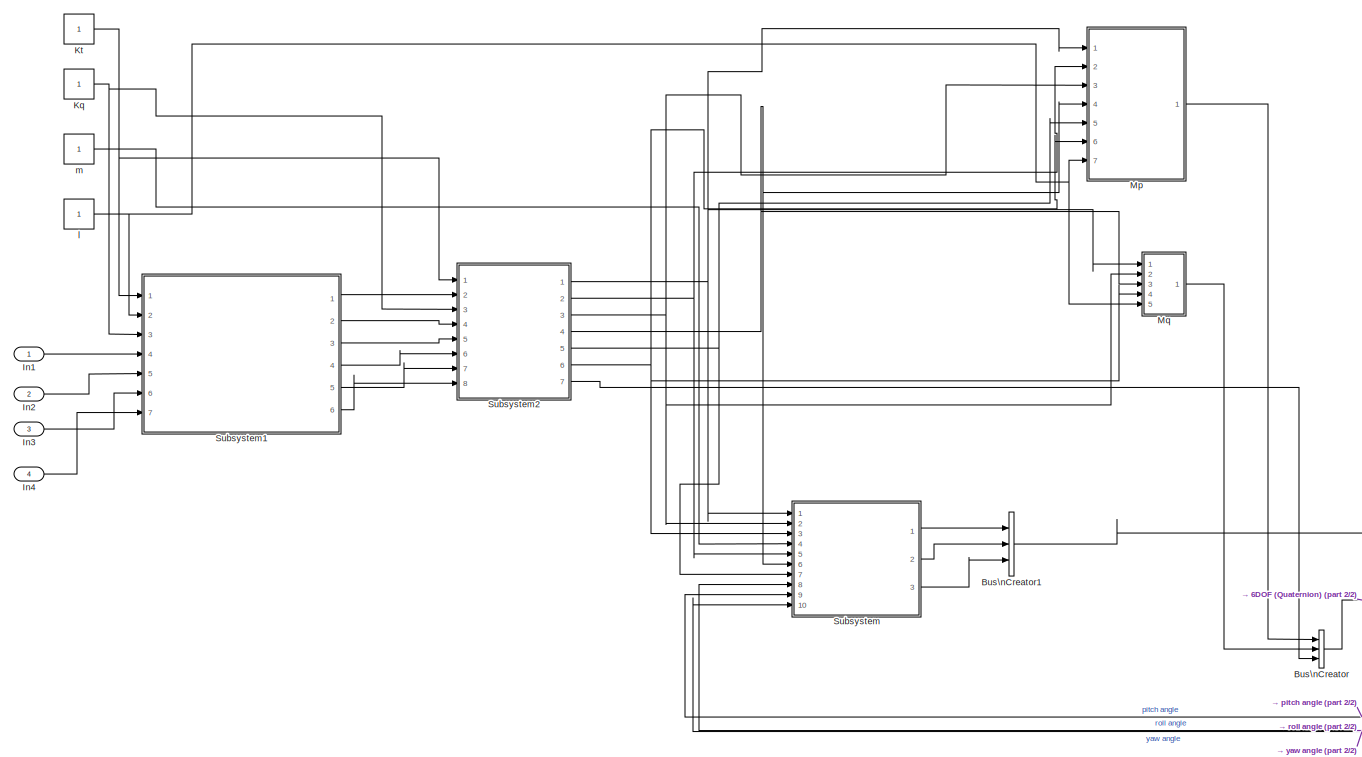
[diagram: root canvas - part 1/2, most of the canvas]
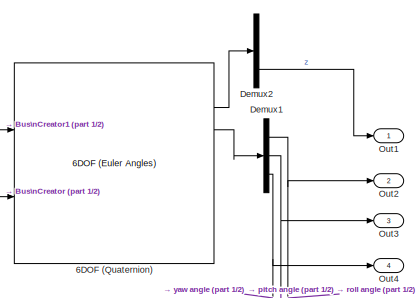
[diagram: root canvas - part 2/2, bottom right region]
MODEL hexarotor_dynamic_model
KIND model
BLOCK [Reference] 6DOF (Quaternion)  REF=aerolib6dof2/6DOF (Euler Angles)
  Ports = [2, 8]
  SID = 3
  SourceBlock = aerolib6dof2/6DOF (Euler Angles)
  SourceType = 6DOF EoM (Body Axis)
  Vm_0 = [0 0 0]
  eul_0 = [0 0 0]
  inertia = eye(3)
  inertia_e = eye(3)
  inertia_f = 2*eye(3)
  k_quat = 1.0
  mass_0 = 1.0
  mass_e = 0.5
  mass_f = 2.0
  mtype = Fixed
  pm_0 = [0 0 0]
  rep = Quaternion
  units = Metric (MKS)
  vre_flag = on
  xme_0 = [0 0 0]
BLOCK [BusCreator] Bus\nCreator
  DisplayOption = bar
  Inputs = 3
  Ports = [3, 1]
  SID = 92
BLOCK [BusCreator] Bus\nCreator1
  DisplayOption = bar
  Inputs = 3
  Ports = [3, 1]
  SID = 150
BLOCK [Demux] Demux1
  DisplayOption = bar
  Outputs = 3
  Ports = [1, 3]
  SID = 24
BLOCK [Demux] Demux2
  DisplayOption = bar
  Outputs = 3
  Ports = [1, 3]
  SID = 208
BLOCK [Inport] In1
  IconDisplay = Port number
  SID = 241
BLOCK [Inport] In2
  IconDisplay = Port number
  Port = 2
  SID = 242
BLOCK [Inport] In3
  IconDisplay = Port number
  Port = 3
  SID = 243
BLOCK [Inport] In4
  IconDisplay = Port number
  Port = 4
  SID = 244
BLOCK [Constant] Kq
  SID = 19
BLOCK [Constant] Kt
  SID = 18
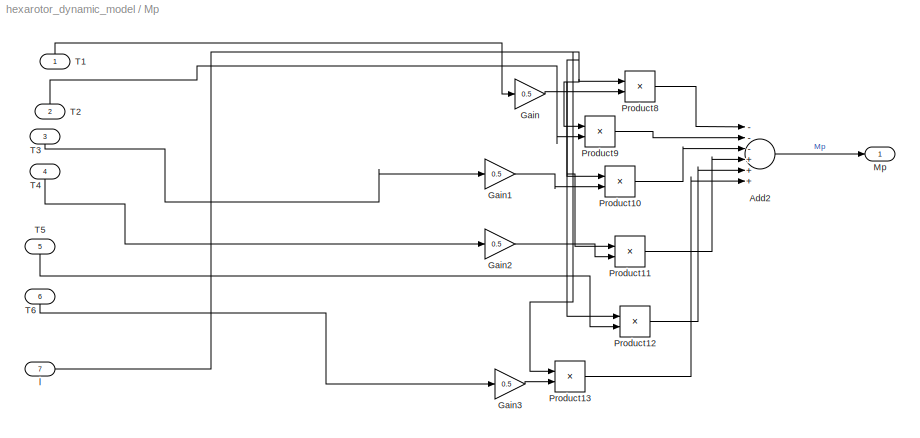
BLOCK [SubSystem] Mp
  Ports = [7, 1]
  RequestExecContextInheritance = off
  SID = 51
BLOCK [Sum] Mp/Add2
  InputSameDT = off
  Inputs = ---+++
  OutDataTypeStr = Inherit: Inherit via internal rule
  Ports = [6, 1]
  SID = 40
  SaturateOnIntegerOverflow = off
BLOCK [Gain] Mp/Gain
  Gain = 0.5
  OutDataTypeStr = Inherit: Inherit via internal rule
  ParamDataTypeStr = Inherit: Inherit via internal rule
  SID = 41
  SaturateOnIntegerOverflow = off
BLOCK [Gain] Mp/Gain1
  Gain = 0.5
  OutDataTypeStr = Inherit: Inherit via internal rule
  ParamDataTypeStr = Inherit: Inherit via internal rule
  SID = 44
  SaturateOnIntegerOverflow = off
BLOCK [Gain] Mp/Gain2
  Gain = 0.5
  OutDataTypeStr = Inherit: Inherit via internal rule
  ParamDataTypeStr = Inherit: Inherit via internal rule
  SID = 46
  SaturateOnIntegerOverflow = off
BLOCK [Gain] Mp/Gain3
  Gain = 0.5
  OutDataTypeStr = Inherit: Inherit via internal rule
  ParamDataTypeStr = Inherit: Inherit via internal rule
  SID = 50
  SaturateOnIntegerOverflow = off
BLOCK [Outport] Mp/Mp
  IconDisplay = Port number
  SID = 59
BLOCK [Product] Mp/Product10
  InputSameDT = off
  OutDataTypeStr = Inherit: Inherit via internal rule
  Ports = [2, 1]
  RndMeth = Floor
  SID = 45
  SaturateOnIntegerOverflow = off
BLOCK [Product] Mp/Product11
  InputSameDT = off
  OutDataTypeStr = Inherit: Inherit via internal rule
  Ports = [2, 1]
  RndMeth = Floor
  SID = 47
  SaturateOnIntegerOverflow = off
BLOCK [Product] Mp/Product12
  InputSameDT = off
  OutDataTypeStr = Inherit: Inherit via internal rule
  Ports = [2, 1]
  RndMeth = Floor
  SID = 48
  SaturateOnIntegerOverflow = off
BLOCK [Product] Mp/Product13
  InputSameDT = off
  OutDataTypeStr = Inherit: Inherit via internal rule
  Ports = [2, 1]
  RndMeth = Floor
  SID = 49
  SaturateOnIntegerOverflow = off
BLOCK [Product] Mp/Product8
  InputSameDT = off
  OutDataTypeStr = Inherit: Inherit via internal rule
  Ports = [2, 1]
  RndMeth = Floor
  SID = 42
  SaturateOnIntegerOverflow = off
BLOCK [Product] Mp/Product9
  InputSameDT = off
  OutDataTypeStr = Inherit: Inherit via internal rule
  Ports = [2, 1]
  RndMeth = Floor
  SID = 43
  SaturateOnIntegerOverflow = off
BLOCK [Inport] Mp/T1
  IconDisplay = Port number
  SID = 52
BLOCK [Inport] Mp/T2
  IconDisplay = Port number
  Port = 2
  SID = 53
BLOCK [Inport] Mp/T3
  IconDisplay = Port number
  Port = 3
  SID = 54
BLOCK [Inport] Mp/T4
  IconDisplay = Port number
  Port = 4
  SID = 55
BLOCK [Inport] Mp/T5
  IconDisplay = Port number
  Port = 5
  SID = 56
BLOCK [Inport] Mp/T6
  IconDisplay = Port number
  Port = 6
  SID = 57
BLOCK [Inport] Mp/l
  IconDisplay = Port number
  Port = 7
  SID = 58
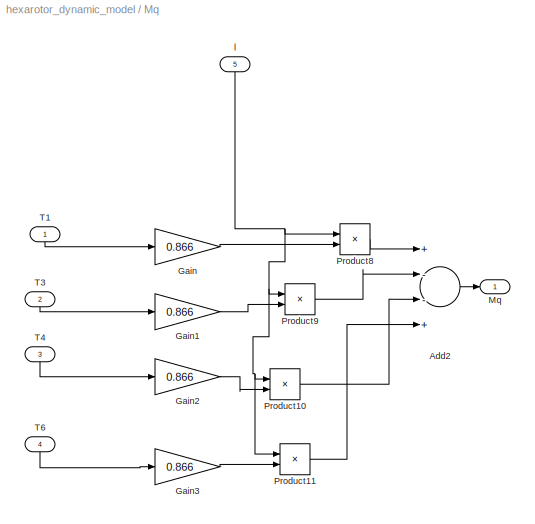
BLOCK [SubSystem] Mq
  Ports = [5, 1]
  RequestExecContextInheritance = off
  SID = 69
BLOCK [Sum] Mq/Add2
  InputSameDT = off
  Inputs = +--+
  OutDataTypeStr = Inherit: Inherit via internal rule
  Ports = [4, 1]
  SID = 60
  SaturateOnIntegerOverflow = off
BLOCK [Gain] Mq/Gain
  Gain = 0.866
  OutDataTypeStr = Inherit: Inherit via internal rule
  ParamDataTypeStr = Inherit: Inherit via internal rule
  SID = 62
  SaturateOnIntegerOverflow = off
BLOCK [Gain] Mq/Gain1
  Gain = 0.866
  OutDataTypeStr = Inherit: Inherit via internal rule
  ParamDataTypeStr = Inherit: Inherit via internal rule
  SID = 63
  SaturateOnIntegerOverflow = off
BLOCK [Gain] Mq/Gain2
  Gain = 0.866
  OutDataTypeStr = Inherit: Inherit via internal rule
  ParamDataTypeStr = Inherit: Inherit via internal rule
  SID = 64
  SaturateOnIntegerOverflow = off
BLOCK [Gain] Mq/Gain3
  Gain = 0.866
  OutDataTypeStr = Inherit: Inherit via internal rule
  ParamDataTypeStr = Inherit: Inherit via internal rule
  SID = 65
  SaturateOnIntegerOverflow = off
BLOCK [Outport] Mq/Mq
  IconDisplay = Port number
  SID = 75
BLOCK [Product] Mq/Product10
  InputSameDT = off
  OutDataTypeStr = Inherit: Inherit via internal rule
  Ports = [2, 1]
  RndMeth = Floor
  SID = 67
  SaturateOnIntegerOverflow = off
BLOCK [Product] Mq/Product11
  InputSameDT = off
  OutDataTypeStr = Inherit: Inherit via internal rule
  Ports = [2, 1]
  RndMeth = Floor
  SID = 68
  SaturateOnIntegerOverflow = off
BLOCK [Product] Mq/Product8
  InputSameDT = off
  OutDataTypeStr = Inherit: Inherit via internal rule
  Ports = [2, 1]
  RndMeth = Floor
  SID = 61
  SaturateOnIntegerOverflow = off
BLOCK [Product] Mq/Product9
  InputSameDT = off
  OutDataTypeStr = Inherit: Inherit via internal rule
  Ports = [2, 1]
  RndMeth = Floor
  SID = 66
  SaturateOnIntegerOverflow = off
BLOCK [Inport] Mq/T1
  IconDisplay = Port number
  SID = 70
BLOCK [Inport] Mq/T3
  IconDisplay = Port number
  Port = 2
  SID = 71
BLOCK [Inport] Mq/T4
  IconDisplay = Port number
  Port = 3
  SID = 72
BLOCK [Inport] Mq/T6
  IconDisplay = Port number
  Port = 4
  SID = 73
BLOCK [Inport] Mq/l
  IconDisplay = Port number
  Port = 5
  SID = 74
BLOCK [Outport] Out1
  IconDisplay = Port number
  SID = 245
BLOCK [Outport] Out2
  IconDisplay = Port number
  Port = 2
  SID = 246
BLOCK [Outport] Out3
  IconDisplay = Port number
  Port = 3
  SID = 247
BLOCK [Outport] Out4
  IconDisplay = Port number
  Port = 4
  SID = 248
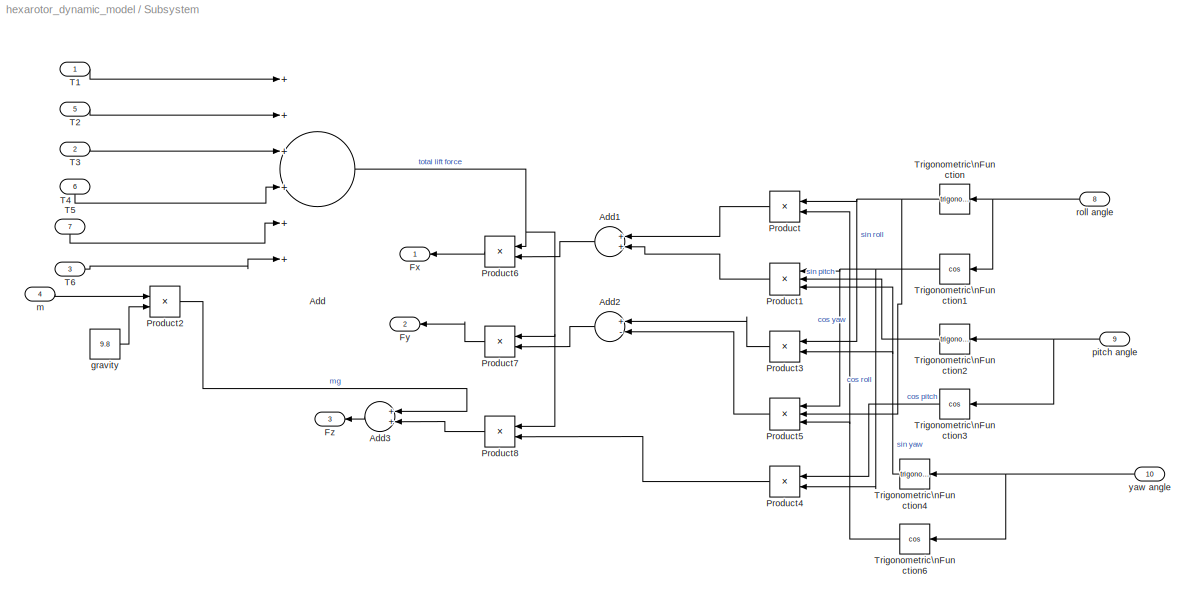
BLOCK [SubSystem] Subsystem
  Ports = [10, 3]
  RequestExecContextInheritance = off
  SID = 135
BLOCK [Sum] Subsystem/Add
  InputSameDT = off
  Inputs = ++++++
  OutDataTypeStr = Inherit: Inherit via internal rule
  Ports = [6, 1]
  SID = 20
  SaturateOnIntegerOverflow = off
BLOCK [Sum] Subsystem/Add1
  InputSameDT = off
  OutDataTypeStr = Inherit: Inherit via internal rule
  Ports = [2, 1]
  SID = 126
  SaturateOnIntegerOverflow = off
BLOCK [Sum] Subsystem/Add2
  InputSameDT = off
  Inputs = +-
  OutDataTypeStr = Inherit: Inherit via internal rule
  Ports = [2, 1]
  SID = 127
  SaturateOnIntegerOverflow = off
BLOCK [Sum] Subsystem/Add3
  InputSameDT = off
  OutDataTypeStr = Inherit: Inherit via internal rule
  Ports = [2, 1]
  SID = 134
  SaturateOnIntegerOverflow = off
BLOCK [Outport] Subsystem/Fx
  IconDisplay = Port number
  SID = 146
BLOCK [Outport] Subsystem/Fy
  IconDisplay = Port number
  Port = 2
  SID = 147
BLOCK [Outport] Subsystem/Fz
  IconDisplay = Port number
  Port = 3
  SID = 149
BLOCK [Product] Subsystem/Product
  InputSameDT = off
  OutDataTypeStr = Inherit: Inherit via internal rule
  Ports = [2, 1]
  RndMeth = Floor
  SID = 119
  SaturateOnIntegerOverflow = off
BLOCK [Product] Subsystem/Product1
  InputSameDT = off
  Inputs = 3
  OutDataTypeStr = Inherit: Inherit via internal rule
  Ports = [3, 1]
  RndMeth = Floor
  SID = 120
  SaturateOnIntegerOverflow = off
BLOCK [Product] Subsystem/Product2
  InputSameDT = off
  OutDataTypeStr = Inherit: Inherit via internal rule
  Ports = [2, 1]
  RndMeth = Floor
  SID = 32
  SaturateOnIntegerOverflow = off
BLOCK [Product] Subsystem/Product3
  InputSameDT = off
  OutDataTypeStr = Inherit: Inherit via internal rule
  Ports = [2, 1]
  RndMeth = Floor
  SID = 121
  SaturateOnIntegerOverflow = off
BLOCK [Product] Subsystem/Product4
  InputSameDT = off
  OutDataTypeStr = Inherit: Inherit via internal rule
  Ports = [2, 1]
  RndMeth = Floor
  SID = 122
  SaturateOnIntegerOverflow = off
BLOCK [Product] Subsystem/Product5
  InputSameDT = off
  Inputs = 3
  OutDataTypeStr = Inherit: Inherit via internal rule
  Ports = [3, 1]
  RndMeth = Floor
  SID = 123
  SaturateOnIntegerOverflow = off
BLOCK [Product] Subsystem/Product6
  InputSameDT = off
  OutDataTypeStr = Inherit: Inherit via internal rule
  Ports = [2, 1]
  RndMeth = Floor
  SID = 125
  SaturateOnIntegerOverflow = off
BLOCK [Product] Subsystem/Product7
  InputSameDT = off
  OutDataTypeStr = Inherit: Inherit via internal rule
  Ports = [2, 1]
  RndMeth = Floor
  SID = 129
  SaturateOnIntegerOverflow = off
BLOCK [Product] Subsystem/Product8
  InputSameDT = off
  OutDataTypeStr = Inherit: Inherit via internal rule
  Ports = [2, 1]
  RndMeth = Floor
  SID = 130
  SaturateOnIntegerOverflow = off
BLOCK [Inport] Subsystem/T1
  IconDisplay = Port number
  SID = 136
BLOCK [Inport] Subsystem/T2
  IconDisplay = Port number
  Port = 5
  SID = 140
BLOCK [Inport] Subsystem/T3
  IconDisplay = Port number
  Port = 2
  SID = 137
BLOCK [Inport] Subsystem/T4
  IconDisplay = Port number
  Port = 6
  SID = 141
BLOCK [Inport] Subsystem/T5
  IconDisplay = Port number
  Port = 7
  SID = 142
BLOCK [Inport] Subsystem/T6
  IconDisplay = Port number
  Port = 3
  SID = 138
BLOCK [Trigonometry] Subsystem/Trigonometric\nFunction
  Ports = [1, 1]
  SID = 112
BLOCK [Trigonometry] Subsystem/Trigonometric\nFunction1
  Operator = cos
  Ports = [1, 1]
  SID = 113
BLOCK [Trigonometry] Subsystem/Trigonometric\nFunction2
  Ports = [1, 1]
  SID = 114
BLOCK [Trigonometry] Subsystem/Trigonometric\nFunction3
  Operator = cos
  Ports = [1, 1]
  SID = 115
BLOCK [Trigonometry] Subsystem/Trigonometric\nFunction4
  Ports = [1, 1]
  SID = 116
BLOCK [Trigonometry] Subsystem/Trigonometric\nFunction6
  Operator = cos
  Ports = [1, 1]
  SID = 118
BLOCK [Constant] Subsystem/gravity
  SID = 33
  Value = 9.8
BLOCK [Inport] Subsystem/m
  IconDisplay = Port number
  Port = 4
  SID = 139
BLOCK [Inport] Subsystem/pitch angle
  IconDisplay = Port number
  Port = 9
  SID = 144
BLOCK [Inport] Subsystem/roll angle
  IconDisplay = Port number
  Port = 8
  SID = 143
BLOCK [Inport] Subsystem/yaw angle
  IconDisplay = Port number
  Port = 10
  SID = 145
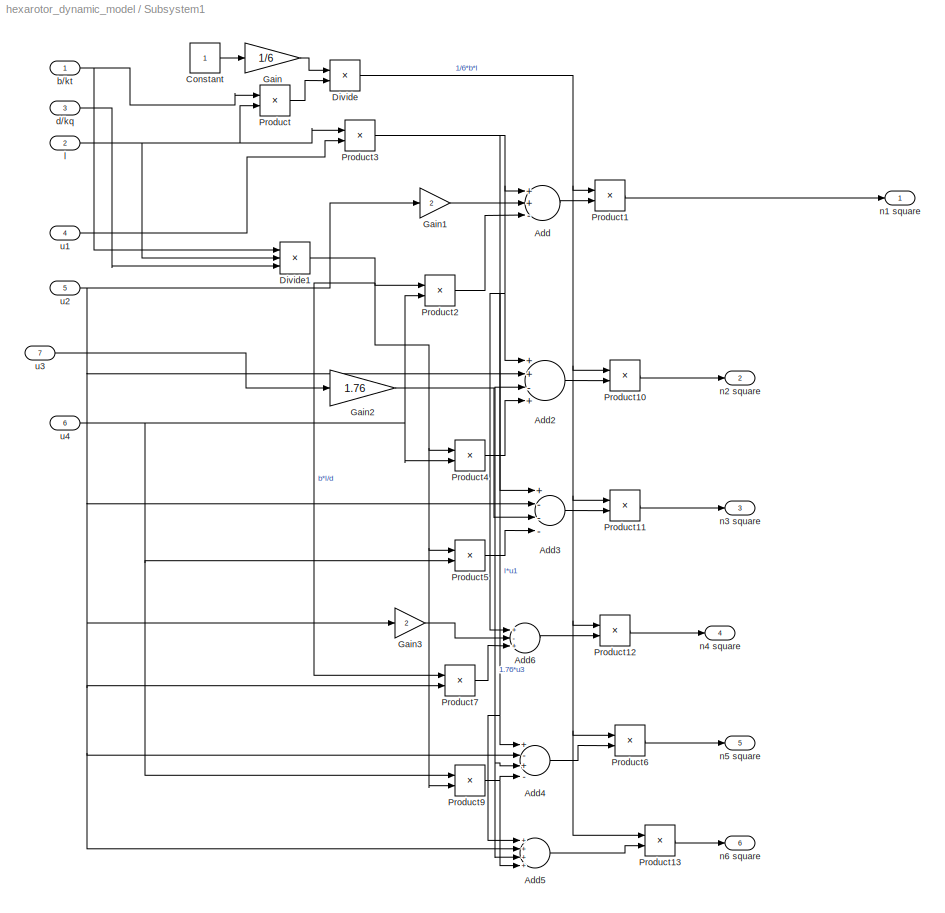
BLOCK [SubSystem] Subsystem1
  Ports = [7, 6]
  RequestExecContextInheritance = off
  SID = 151
BLOCK [Sum] Subsystem1/Add
  InputSameDT = off
  Inputs = ++-
  OutDataTypeStr = Inherit: Inherit via internal rule
  Ports = [3, 1]
  SID = 159
  SaturateOnIntegerOverflow = off
BLOCK [Sum] Subsystem1/Add2
  InputSameDT = off
  Inputs = ++-+
  OutDataTypeStr = Inherit: Inherit via internal rule
  Ports = [4, 1]
  SID = 160
  SaturateOnIntegerOverflow = off
BLOCK [Sum] Subsystem1/Add3
  InputSameDT = off
  Inputs = +---
  OutDataTypeStr = Inherit: Inherit via internal rule
  Ports = [4, 1]
  SID = 161
  SaturateOnIntegerOverflow = off
BLOCK [Sum] Subsystem1/Add4
  InputSameDT = off
  Inputs = +-+-
  OutDataTypeStr = Inherit: Inherit via internal rule
  Ports = [4, 1]
  SID = 162
  SaturateOnIntegerOverflow = off
BLOCK [Sum] Subsystem1/Add5
  InputSameDT = off
  Inputs = ++++
  OutDataTypeStr = Inherit: Inherit via internal rule
  Ports = [4, 1]
  SID = 163
  SaturateOnIntegerOverflow = off
BLOCK [Sum] Subsystem1/Add6
  InputSameDT = off
  Inputs = +-+
  OutDataTypeStr = Inherit: Inherit via internal rule
  Ports = [3, 1]
  SID = 164
  SaturateOnIntegerOverflow = off
BLOCK [Constant] Subsystem1/Constant
  SID = 165
BLOCK [Product] Subsystem1/Divide
  InputSameDT = off
  Inputs = */
  OutDataTypeStr = Inherit: Inherit via internal rule
  Ports = [2, 1]
  RndMeth = Floor
  SID = 166
  SaturateOnIntegerOverflow = off
BLOCK [Product] Subsystem1/Divide1
  InputSameDT = off
  Inputs = **/
  OutDataTypeStr = Inherit: Inherit via internal rule
  Ports = [3, 1]
  RndMeth = Floor
  SID = 167
  SaturateOnIntegerOverflow = off
BLOCK [Gain] Subsystem1/Gain
  Gain = 1/6
  OutDataTypeStr = Inherit: Inherit via internal rule
  ParamDataTypeStr = Inherit: Inherit via internal rule
  SID = 168
  SaturateOnIntegerOverflow = off
BLOCK [Gain] Subsystem1/Gain1
  Gain = 2
  OutDataTypeStr = Inherit: Inherit via internal rule
  ParamDataTypeStr = Inherit: Inherit via internal rule
  SID = 169
  SaturateOnIntegerOverflow = off
BLOCK [Gain] Subsystem1/Gain2
  Gain = 1.76
  OutDataTypeStr = Inherit: Inherit via internal rule
  ParamDataTypeStr = Inherit: Inherit via internal rule
  SID = 170
  SaturateOnIntegerOverflow = off
BLOCK [Gain] Subsystem1/Gain3
  Gain = 2
  OutDataTypeStr = Inherit: Inherit via internal rule
  ParamDataTypeStr = Inherit: Inherit via internal rule
  SID = 171
  SaturateOnIntegerOverflow = off
BLOCK [Product] Subsystem1/Product
  InputSameDT = off
  OutDataTypeStr = Inherit: Inherit via internal rule
  Ports = [2, 1]
  RndMeth = Floor
  SID = 172
  SaturateOnIntegerOverflow = off
BLOCK [Product] Subsystem1/Product1
  InputSameDT = off
  OutDataTypeStr = Inherit: Inherit via internal rule
  Ports = [2, 1]
  RndMeth = Floor
  SID = 173
  SaturateOnIntegerOverflow = off
BLOCK [Product] Subsystem1/Product10
  InputSameDT = off
  OutDataTypeStr = Inherit: Inherit via internal rule
  Ports = [2, 1]
  RndMeth = Floor
  SID = 174
  SaturateOnIntegerOverflow = off
BLOCK [Product] Subsystem1/Product11
  InputSameDT = off
  OutDataTypeStr = Inherit: Inherit via internal rule
  Ports = [2, 1]
  RndMeth = Floor
  SID = 175
  SaturateOnIntegerOverflow = off
BLOCK [Product] Subsystem1/Product12
  InputSameDT = off
  OutDataTypeStr = Inherit: Inherit via internal rule
  Ports = [2, 1]
  RndMeth = Floor
  SID = 176
  SaturateOnIntegerOverflow = off
BLOCK [Product] Subsystem1/Product13
  InputSameDT = off
  OutDataTypeStr = Inherit: Inherit via internal rule
  Ports = [2, 1]
  RndMeth = Floor
  SID = 177
  SaturateOnIntegerOverflow = off
BLOCK [Product] Subsystem1/Product2
  InputSameDT = off
  OutDataTypeStr = Inherit: Inherit via internal rule
  Ports = [2, 1]
  RndMeth = Floor
  SID = 178
  SaturateOnIntegerOverflow = off
BLOCK [Product] Subsystem1/Product3
  InputSameDT = off
  OutDataTypeStr = Inherit: Inherit via internal rule
  Ports = [2, 1]
  RndMeth = Floor
  SID = 179
  SaturateOnIntegerOverflow = off
BLOCK [Product] Subsystem1/Product4
  InputSameDT = off
  OutDataTypeStr = Inherit: Inherit via internal rule
  Ports = [2, 1]
  RndMeth = Floor
  SID = 180
  SaturateOnIntegerOverflow = off
BLOCK [Product] Subsystem1/Product5
  InputSameDT = off
  OutDataTypeStr = Inherit: Inherit via internal rule
  Ports = [2, 1]
  RndMeth = Floor
  SID = 181
  SaturateOnIntegerOverflow = off
BLOCK [Product] Subsystem1/Product6
  InputSameDT = off
  OutDataTypeStr = Inherit: Inherit via internal rule
  Ports = [2, 1]
  RndMeth = Floor
  SID = 182
  SaturateOnIntegerOverflow = off
BLOCK [Product] Subsystem1/Product7
  InputSameDT = off
  OutDataTypeStr = Inherit: Inherit via internal rule
  Ports = [2, 1]
  RndMeth = Floor
  SID = 183
  SaturateOnIntegerOverflow = off
BLOCK [Product] Subsystem1/Product9
  InputSameDT = off
  OutDataTypeStr = Inherit: Inherit via internal rule
  Ports = [2, 1]
  RndMeth = Floor
  SID = 184
  SaturateOnIntegerOverflow = off
BLOCK [Inport] Subsystem1/b//kt
  IconDisplay = Port number
  SID = 152
BLOCK [Inport] Subsystem1/d//kq
  IconDisplay = Port number
  Port = 3
  SID = 154
BLOCK [Inport] Subsystem1/l
  IconDisplay = Port number
  Port = 2
  SID = 153
BLOCK [Outport] Subsystem1/n1 square
  IconDisplay = Port number
  SID = 185
BLOCK [Outport] Subsystem1/n2 square
  IconDisplay = Port number
  Port = 2
  SID = 186
BLOCK [Outport] Subsystem1/n3 square
  IconDisplay = Port number
  Port = 3
  SID = 187
BLOCK [Outport] Subsystem1/n4 square
  IconDisplay = Port number
  Port = 4
  SID = 188
BLOCK [Outport] Subsystem1/n5 square
  IconDisplay = Port number
  Port = 5
  SID = 189
BLOCK [Outport] Subsystem1/n6 square
  IconDisplay = Port number
  Port = 6
  SID = 190
BLOCK [Inport] Subsystem1/u1
  IconDisplay = Port number
  Port = 4
  SID = 155
BLOCK [Inport] Subsystem1/u2
  IconDisplay = Port number
  Port = 5
  SID = 156
BLOCK [Inport] Subsystem1/u3
  IconDisplay = Port number
  Port = 7
  SID = 158
BLOCK [Inport] Subsystem1/u4
  IconDisplay = Port number
  Port = 6
  SID = 157
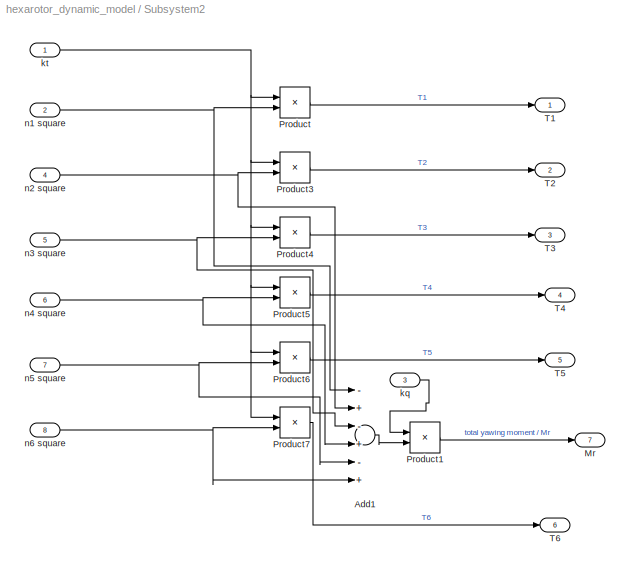
BLOCK [SubSystem] Subsystem2
  Ports = [8, 7]
  RequestExecContextInheritance = off
  SID = 76
BLOCK [Sum] Subsystem2/Add1
  InputSameDT = off
  Inputs = -+-+-+
  OutDataTypeStr = Inherit: Inherit via internal rule
  Ports = [6, 1]
  SID = 21
  SaturateOnIntegerOverflow = off
BLOCK [Outport] Subsystem2/Mr
  IconDisplay = Port number
  Port = 7
  SID = 91
BLOCK [Product] Subsystem2/Product
  InputSameDT = off
  OutDataTypeStr = Inherit: Inherit via internal rule
  Ports = [2, 1]
  RndMeth = Floor
  SID = 22
  SaturateOnIntegerOverflow = off
BLOCK [Product] Subsystem2/Product1
  InputSameDT = off
  OutDataTypeStr = Inherit: Inherit via internal rule
  Ports = [2, 1]
  RndMeth = Floor
  SID = 23
  SaturateOnIntegerOverflow = off
BLOCK [Product] Subsystem2/Product3
  InputSameDT = off
  OutDataTypeStr = Inherit: Inherit via internal rule
  Ports = [2, 1]
  RndMeth = Floor
  SID = 34
  SaturateOnIntegerOverflow = off
BLOCK [Product] Subsystem2/Product4
  InputSameDT = off
  OutDataTypeStr = Inherit: Inherit via internal rule
  Ports = [2, 1]
  RndMeth = Floor
  SID = 35
  SaturateOnIntegerOverflow = off
BLOCK [Product] Subsystem2/Product5
  InputSameDT = off
  OutDataTypeStr = Inherit: Inherit via internal rule
  Ports = [2, 1]
  RndMeth = Floor
  SID = 36
  SaturateOnIntegerOverflow = off
BLOCK [Product] Subsystem2/Product6
  InputSameDT = off
  OutDataTypeStr = Inherit: Inherit via internal rule
  Ports = [2, 1]
  RndMeth = Floor
  SID = 37
  SaturateOnIntegerOverflow = off
BLOCK [Product] Subsystem2/Product7
  InputSameDT = off
  OutDataTypeStr = Inherit: Inherit via internal rule
  Ports = [2, 1]
  RndMeth = Floor
  SID = 38
  SaturateOnIntegerOverflow = off
BLOCK [Outport] Subsystem2/T1
  IconDisplay = Port number
  SID = 85
BLOCK [Outport] Subsystem2/T2
  IconDisplay = Port number
  Port = 2
  SID = 86
BLOCK [Outport] Subsystem2/T3
  IconDisplay = Port number
  Port = 3
  SID = 87
BLOCK [Outport] Subsystem2/T4
  IconDisplay = Port number
  Port = 4
  SID = 88
BLOCK [Outport] Subsystem2/T5
  IconDisplay = Port number
  Port = 5
  SID = 89
BLOCK [Outport] Subsystem2/T6
  IconDisplay = Port number
  Port = 6
  SID = 90
BLOCK [Inport] Subsystem2/kq
  IconDisplay = Port number
  Port = 3
  SID = 79
BLOCK [Inport] Subsystem2/kt
  IconDisplay = Port number
  SID = 77
BLOCK [Inport] Subsystem2/n1 square
  IconDisplay = Port number
  Port = 2
  SID = 78
BLOCK [Inport] Subsystem2/n2 square
  IconDisplay = Port number
  Port = 4
  SID = 80
BLOCK [Inport] Subsystem2/n3 square
  IconDisplay = Port number
  Port = 5
  SID = 81
BLOCK [Inport] Subsystem2/n4 square
  IconDisplay = Port number
  Port = 6
  SID = 82
BLOCK [Inport] Subsystem2/n5 square
  IconDisplay = Port number
  Port = 7
  SID = 83
BLOCK [Inport] Subsystem2/n6 square
  IconDisplay = Port number
  Port = 8
  SID = 84
BLOCK [Constant] l
  SID = 39
BLOCK [Constant] m
  SID = 25
LINE 6DOF (Quaternion):2 -> Demux2:1
LINE 6DOF (Quaternion):3 -> Demux1:1
LINE Bus\nCreator1:1 -> 6DOF (Quaternion):1
LINE Bus\nCreator:1 -> 6DOF (Quaternion):2
NET Demux1:1 -> Out2:1, Subsystem:8
NET Demux1:2 -> Out3:1, Subsystem:9
NET Demux1:3 -> Out4:1, Subsystem:10
LINE Demux2:3 -> Out1:1
LINE In1:1 -> Subsystem1:4
LINE In2:1 -> Subsystem1:5
LINE In3:1 -> Subsystem1:6
LINE In4:1 -> Subsystem1:7
NET Kq:1 -> Subsystem1:3, Subsystem2:3
NET Kt:1 -> Subsystem1:1, Subsystem2:1
LINE Mp/Add2:1 -> Mp/Mp:1
LINE Mp/Gain1:1 -> Mp/Product10:2
LINE Mp/Gain2:1 -> Mp/Product11:2
LINE Mp/Gain3:1 -> Mp/Product13:2
LINE Mp/Gain:1 -> Mp/Product8:2
LINE Mp/Product10:1 -> Mp/Add2:3
LINE Mp/Product11:1 -> Mp/Add2:4
LINE Mp/Product12:1 -> Mp/Add2:5
LINE Mp/Product13:1 -> Mp/Add2:6
LINE Mp/Product8:1 -> Mp/Add2:1
LINE Mp/Product9:1 -> Mp/Add2:2
LINE Mp/T1:1 -> Mp/Gain:1
LINE Mp/T2:1 -> Mp/Product9:2
LINE Mp/T3:1 -> Mp/Gain1:1
LINE Mp/T4:1 -> Mp/Gain2:1
LINE Mp/T5:1 -> Mp/Product12:2
LINE Mp/T6:1 -> Mp/Gain3:1
NET Mp/l:1 -> Mp/Product10:1, Mp/Product11:1, Mp/Product12:1, Mp/Product13:1, Mp/Product8:1, Mp/Product9:1
LINE Mp:1 -> Bus\nCreator:1
LINE Mq/Add2:1 -> Mq/Mq:1
LINE Mq/Gain1:1 -> Mq/Product9:2
LINE Mq/Gain2:1 -> Mq/Product10:2
LINE Mq/Gain3:1 -> Mq/Product11:2
LINE Mq/Gain:1 -> Mq/Product8:2
LINE Mq/Product10:1 -> Mq/Add2:3
LINE Mq/Product11:1 -> Mq/Add2:4
LINE Mq/Product8:1 -> Mq/Add2:1
LINE Mq/Product9:1 -> Mq/Add2:2
LINE Mq/T1:1 -> Mq/Gain:1
LINE Mq/T3:1 -> Mq/Gain1:1
LINE Mq/T4:1 -> Mq/Gain2:1
LINE Mq/T6:1 -> Mq/Gain3:1
NET Mq/l:1 -> Mq/Product10:1, Mq/Product11:1, Mq/Product8:1, Mq/Product9:1
LINE Mq:1 -> Bus\nCreator:2
LINE Subsystem/Add1:1 -> Subsystem/Product6:2
LINE Subsystem/Add2:1 -> Subsystem/Product7:2
LINE Subsystem/Add3:1 -> Subsystem/Fz:1
NET Subsystem/Add:1 -> Subsystem/Product6:1, Subsystem/Product7:1, Subsystem/Product8:1
LINE Subsystem/Product1:1 -> Subsystem/Add1:2
LINE Subsystem/Product2:1 -> Subsystem/Add3:1
LINE Subsystem/Product3:1 -> Subsystem/Add2:1
LINE Subsystem/Product4:1 -> Subsystem/Product8:2
LINE Subsystem/Product5:1 -> Subsystem/Add2:2
LINE Subsystem/Product6:1 -> Subsystem/Fx:1
LINE Subsystem/Product7:1 -> Subsystem/Fy:1
LINE Subsystem/Product8:1 -> Subsystem/Add3:2
LINE Subsystem/Product:1 -> Subsystem/Add1:1
LINE Subsystem/T1:1 -> Subsystem/Add:1
LINE Subsystem/T2:1 -> Subsystem/Add:2
LINE Subsystem/T3:1 -> Subsystem/Add:3
LINE Subsystem/T4:1 -> Subsystem/Add:4
LINE Subsystem/T5:1 -> Subsystem/Add:5
LINE Subsystem/T6:1 -> Subsystem/Add:6
NET Subsystem/Trigonometric\nFunction1:1 -> Subsystem/Product1:1, Subsystem/Product4:2, Subsystem/Product5:1
LINE Subsystem/Trigonometric\nFunction2:1 -> Subsystem/Product1:2
LINE Subsystem/Trigonometric\nFunction3:1 -> Subsystem/Product4:1
NET Subsystem/Trigonometric\nFunction4:1 -> Subsystem/Product1:3, Subsystem/Product3:2
NET Subsystem/Trigonometric\nFunction6:1 -> Subsystem/Product5:3, Subsystem/Product:2
NET Subsystem/Trigonometric\nFunction:1 -> Subsystem/Product3:1, Subsystem/Product5:2, Subsystem/Product:1
LINE Subsystem/gravity:1 -> Subsystem/Product2:2
LINE Subsystem/m:1 -> Subsystem/Product2:1
NET Subsystem/pitch angle:1 -> Subsystem/Trigonometric\nFunction2:1, Subsystem/Trigonometric\nFunction3:1
NET Subsystem/roll angle:1 -> Subsystem/Trigonometric\nFunction1:1, Subsystem/Trigonometric\nFunction:1
NET Subsystem/yaw angle:1 -> Subsystem/Trigonometric\nFunction4:1, Subsystem/Trigonometric\nFunction6:1
LINE Subsystem1/Add2:1 -> Subsystem1/Product10:2
LINE Subsystem1/Add3:1 -> Subsystem1/Product11:2
LINE Subsystem1/Add4:1 -> Subsystem1/Product6:2
LINE Subsystem1/Add5:1 -> Subsystem1/Product13:2
LINE Subsystem1/Add6:1 -> Subsystem1/Product12:2
LINE Subsystem1/Add:1 -> Subsystem1/Product1:2
LINE Subsystem1/Constant:1 -> Subsystem1/Gain:1
NET Subsystem1/Divide1:1 -> Subsystem1/Product2:1, Subsystem1/Product4:1, Subsystem1/Product5:1, Subsystem1/Product7:1, Subsystem1/Product9:2
NET Subsystem1/Divide:1 -> Subsystem1/Product10:1, Subsystem1/Product11:1, Subsystem1/Product12:1, Subsystem1/Product13:1, Subsystem1/Product1:1, Subsystem1/Product6:1
LINE Subsystem1/Gain1:1 -> Subsystem1/Add:2
NET Subsystem1/Gain2:1 -> Subsystem1/Add2:3, Subsystem1/Add3:3, Subsystem1/Add4:3, Subsystem1/Add5:3
LINE Subsystem1/Gain3:1 -> Subsystem1/Add6:2
LINE Subsystem1/Gain:1 -> Subsystem1/Divide:1
LINE Subsystem1/Product10:1 -> Subsystem1/n2 square:1
LINE Subsystem1/Product11:1 -> Subsystem1/n3 square:1
LINE Subsystem1/Product12:1 -> Subsystem1/n4 square:1
LINE Subsystem1/Product13:1 -> Subsystem1/n6 square:1
LINE Subsystem1/Product1:1 -> Subsystem1/n1 square:1
LINE Subsystem1/Product2:1 -> Subsystem1/Add:3
NET Subsystem1/Product3:1 -> Subsystem1/Add2:1, Subsystem1/Add3:1, Subsystem1/Add4:1, Subsystem1/Add5:1, Subsystem1/Add6:1, Subsystem1/Add:1
LINE Subsystem1/Product4:1 -> Subsystem1/Add2:4
LINE Subsystem1/Product5:1 -> Subsystem1/Add3:4
LINE Subsystem1/Product6:1 -> Subsystem1/n5 square:1
LINE Subsystem1/Product7:1 -> Subsystem1/Add6:3
NET Subsystem1/Product9:1 -> Subsystem1/Add4:4, Subsystem1/Add5:4
LINE Subsystem1/Product:1 -> Subsystem1/Divide:2
NET Subsystem1/b//kt:1 -> Subsystem1/Divide1:1, Subsystem1/Product:1
LINE Subsystem1/d//kq:1 -> Subsystem1/Divide1:3
NET Subsystem1/l:1 -> Subsystem1/Divide1:2, Subsystem1/Product3:1, Subsystem1/Product:2
LINE Subsystem1/u1:1 -> Subsystem1/Product3:2
NET Subsystem1/u2:1 -> Subsystem1/Add2:2, Subsystem1/Add3:2, Subsystem1/Add4:2, Subsystem1/Add5:2, Subsystem1/Gain1:1, Subsystem1/Gain3:1, Subsystem1/Product7:2
LINE Subsystem1/u3:1 -> Subsystem1/Gain2:1
NET Subsystem1/u4:1 -> Subsystem1/Product2:2, Subsystem1/Product4:2, Subsystem1/Product5:2, Subsystem1/Product9:1
LINE Subsystem1:1 -> Subsystem2:2
LINE Subsystem1:2 -> Subsystem2:4
LINE Subsystem1:3 -> Subsystem2:5
LINE Subsystem1:4 -> Subsystem2:6
LINE Subsystem1:5 -> Subsystem2:7
LINE Subsystem1:6 -> Subsystem2:8
LINE Subsystem2/Add1:1 -> Subsystem2/Product1:2
LINE Subsystem2/Product1:1 -> Subsystem2/Mr:1
LINE Subsystem2/Product3:1 -> Subsystem2/T2:1
LINE Subsystem2/Product4:1 -> Subsystem2/T3:1
LINE Subsystem2/Product5:1 -> Subsystem2/T4:1
LINE Subsystem2/Product6:1 -> Subsystem2/T5:1
LINE Subsystem2/Product7:1 -> Subsystem2/T6:1
LINE Subsystem2/Product:1 -> Subsystem2/T1:1
LINE Subsystem2/kq:1 -> Subsystem2/Product1:1
NET Subsystem2/kt:1 -> Subsystem2/Product3:1, Subsystem2/Product4:1, Subsystem2/Product5:1, Subsystem2/Product6:1, Subsystem2/Product7:1, Subsystem2/Product:1
NET Subsystem2/n1 square:1 -> Subsystem2/Add1:1, Subsystem2/Product:2
NET Subsystem2/n2 square:1 -> Subsystem2/Add1:2, Subsystem2/Product3:2
NET Subsystem2/n3 square:1 -> Subsystem2/Add1:3, Subsystem2/Product4:2
NET Subsystem2/n4 square:1 -> Subsystem2/Add1:4, Subsystem2/Product5:2
NET Subsystem2/n5 square:1 -> Subsystem2/Add1:5, Subsystem2/Product6:2
NET Subsystem2/n6 square:1 -> Subsystem2/Add1:6, Subsystem2/Product7:2
NET Subsystem2:1 -> Mp:1, Mq:1, Subsystem:1
NET Subsystem2:2 -> Mp:2, Subsystem:5
NET Subsystem2:3 -> Mp:3, Mq:2, Subsystem:2
NET Subsystem2:4 -> Mp:4, Mq:3, Subsystem:6
NET Subsystem2:5 -> Mp:5, Subsystem:7
NET Subsystem2:6 -> Mp:6, Mq:4, Subsystem:3
LINE Subsystem2:7 -> Bus\nCreator:3
LINE Subsystem:1 -> Bus\nCreator1:1
LINE Subsystem:2 -> Bus\nCreator1:2
LINE Subsystem:3 -> Bus\nCreator1:3
NET l:1 -> Mp:7, Mq:5, Subsystem1:2
LINE m:1 -> Subsystem:4
note: NET lines group one-source signal fan-out (src -> all destinations, sorted); 1:1 wires keep LINE
